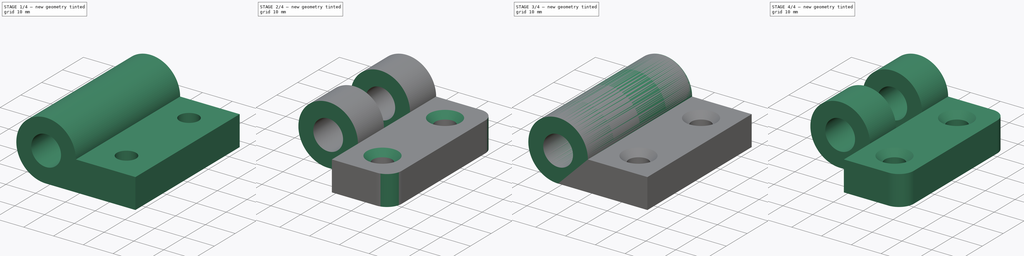
[diagram: build sequence overview — one tinted view per stage of 4, left to right]
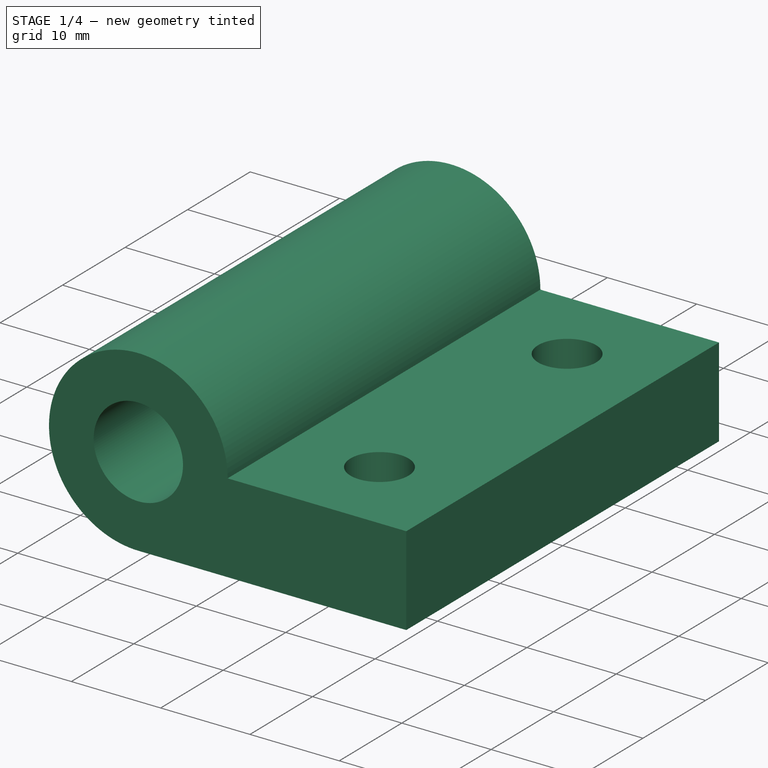
[diagram: stage 1 of 4 — iso view after this stage's code; geometry added in this stage tinted green]
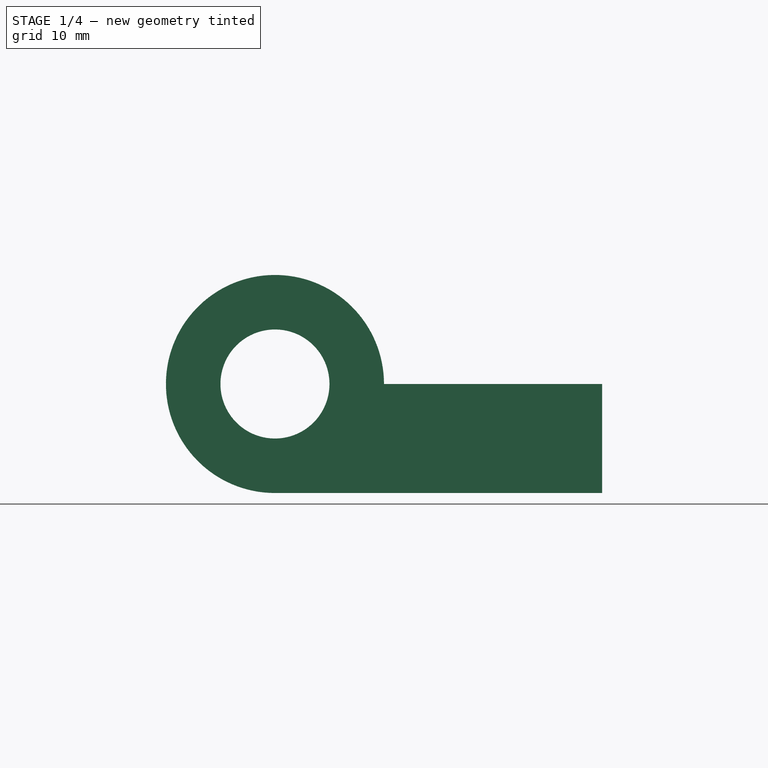
[diagram: stage 1 of 4 — front view after this stage's code; geometry added in this stage tinted green]
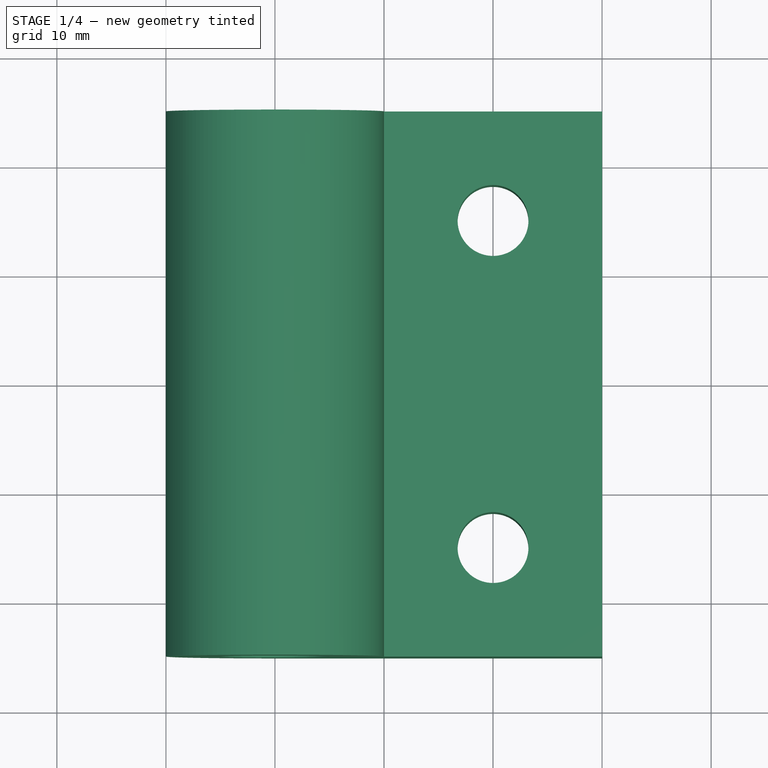
[diagram: stage 1 of 4 — top view after this stage's code; geometry added in this stage tinted green]
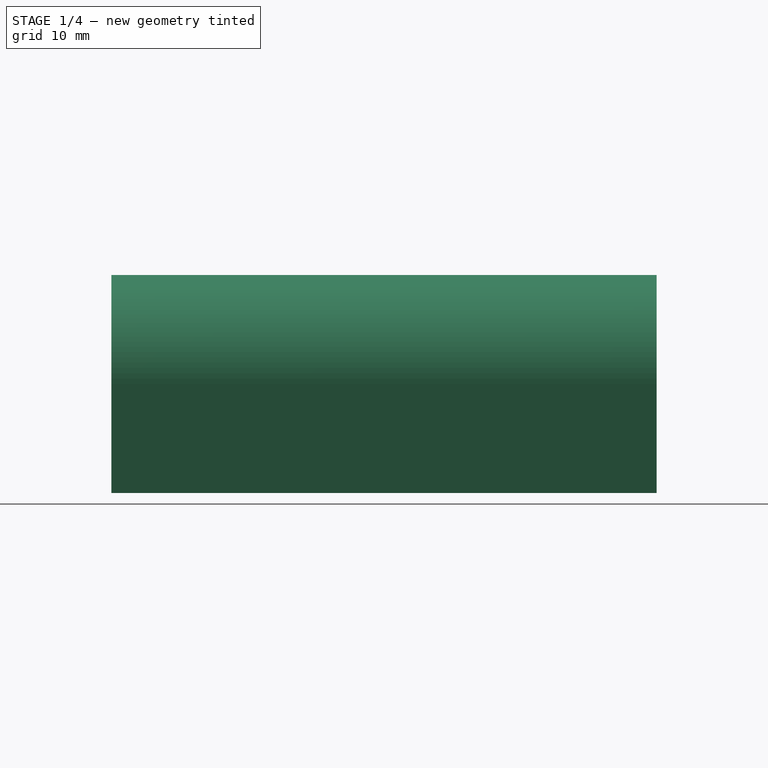
[diagram: stage 1 of 4 — right view after this stage's code; geometry added in this stage tinted green]
FCSTD DOCUMENT  (FreeCAD 1.0R39319 (Git))
Label: Hinge__4040
License: All rights reserved
LicenseURL: http://en.wikipedia.org/wiki/All_rights_reserved
objects: Sketcher::SketchObject×6, PartDesign::Pocket×4, PartDesign::Pad×2, PartDesign::Chamfer×2, PartDesign::Fillet×2, PartDesign::Body×2
note: 44 computed .brp shape members not serialized (recipe doc carries the construction recipe); baked Part::Feature solids carry a one-line shape summary decoded from their .brp

FEATURE [PartDesign::Body] Body
  AllowCompound = false
  Group = -> [Sketch,Pad,Sketch001,Pocket,Chamfer,Fillet,Sketch004,Pocket002]
  Origin = -> Origin
  Tip = -> Pocket002
FEATURE [Sketcher::SketchObject] Sketch005
  ArcFitTolerance = 0
  AttachmentSupport = -> [XZ_Plane001]
  FullyConstrained = true
  MakeInternals = false
  MapMode = 5
  Placement = pos=(0,0,0) rot=(1,0,0;1.5708rad)
  sketch-geometry (5):
    g0: Circle CenterX=0 CenterY=0 CenterZ=0 NormalX=0 NormalY=0 NormalZ=1 AngleXU=0 Radius=5
    g1: ArcOfCircle CenterX=0 CenterY=0 CenterZ=0 NormalX=0 NormalY=0 NormalZ=1 AngleXU=0 Radius=10 StartAngle=0 EndAngle=4.71239
    g2: LineSegment StartX=-1.8e-15 StartY=-10 StartZ=0 EndX=30 EndY=-10 EndZ=0
    g3: LineSegment StartX=30 StartY=-10 StartZ=0 EndX=30 EndY=0 EndZ=0
    g4: LineSegment StartX=30 StartY=0 StartZ=0 EndX=10 EndY=0 EndZ=0
  constraints (14):
    c: Coincident(g0,g-1)
    c: Coincident(g1,g0)
    c: Coincident(g2,g3)
    c: Coincident(g3,g4)
    c: Vertical(g3)
    c: Horizontal(g2)
    c: Horizontal(g4)
    c: DistanceX(g2,g2) = 30
    c: DistanceY(g3,g3) = 10
    c: Diameter(g0) = 10
    c: Diameter(g1) = 20
    c: Coincident(g4,g1)
    c: Coincident(g2,g1)
    c: PointOnObject(g1,g-2)
FEATURE [PartDesign::Pad] Pad001
  Direction = (0,-1,2e-16)
  Length = 50
  Length2 = 10
  Midplane = true
  Placement = pos=(0,0,0) rot=(1,0,0;1.5708rad)
  Profile = -> Sketch005
  ReferenceAxis = -> Sketch005 [N_Axis]
  Refine = true
  Suppressed = false
  Type = 0
FEATURE [Sketcher::SketchObject] Sketch006
  ArcFitTolerance = 1e-06
  AttachmentSupport = -> [Pad001]
  FullyConstrained = true
  MakeInternals = false
  MapMode = 5
  Placement = pos=(0,0,0) rot=(0,0,1;3.14159rad)
  sketch-geometry (2):
    g0: Circle CenterX=-20 CenterY=-15 CenterZ=0 NormalX=0 NormalY=0 NormalZ=1 AngleXU=0 Radius=3.25
    g1: Circle CenterX=-20 CenterY=15 CenterZ=0 NormalX=0 NormalY=0 NormalZ=1 AngleXU=0 Radius=3.25
  constraints (5):
    c: Symmetric(g1,g0,g-1)
    c: Equal(g1,g0)
    c: Diameter(g0) = 6.5
    c: DistanceY(g0,g1) = 30
    c: DistanceX(g0,g-1) = 20
FEATURE [PartDesign::Pocket] Pocket003
  BaseFeature = -> Pad001
  Direction = (0,0,-1)
  Length = 5
  Length2 = 5
  Placement = pos=(0,0,0) rot=(1,0,0;1.5708rad)
  Profile = -> Sketch006
  ReferenceAxis = -> Sketch006 [N_Axis]
  Refine = true
  Suppressed = false
  Type = 2
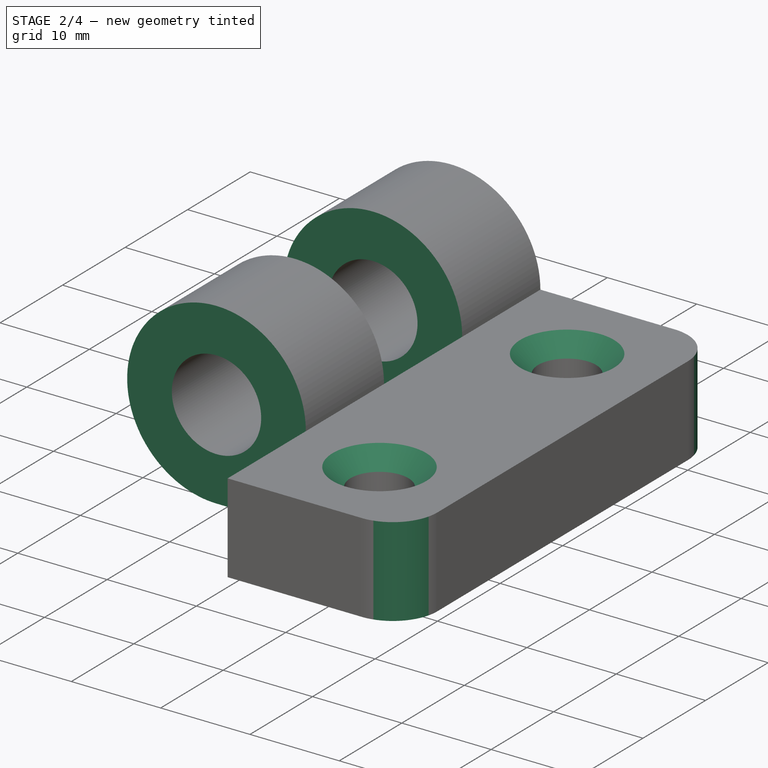
[diagram: stage 2 of 4 — iso view after this stage's code; geometry added in this stage tinted green]
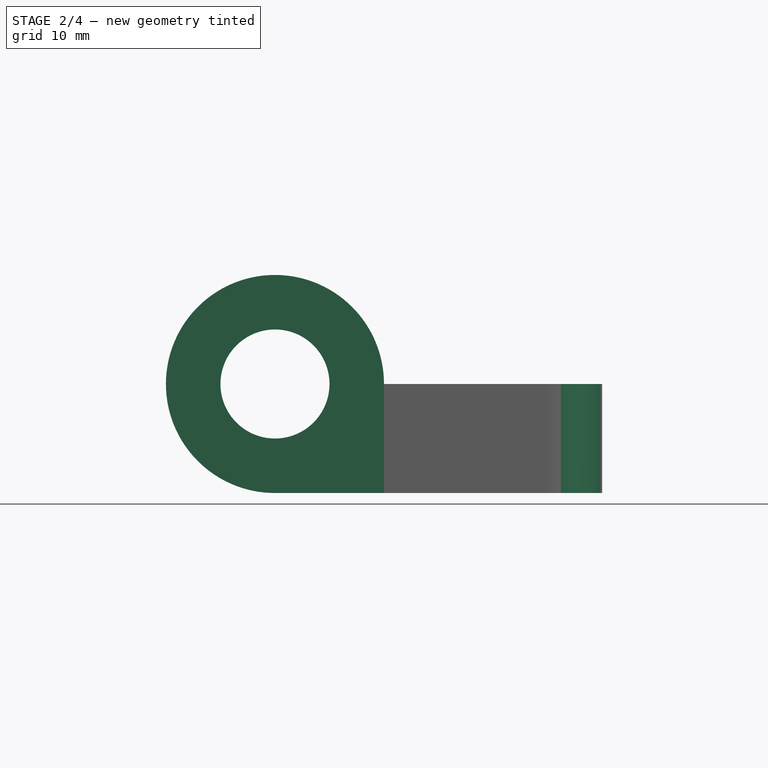
[diagram: stage 2 of 4 — front view after this stage's code; geometry added in this stage tinted green]
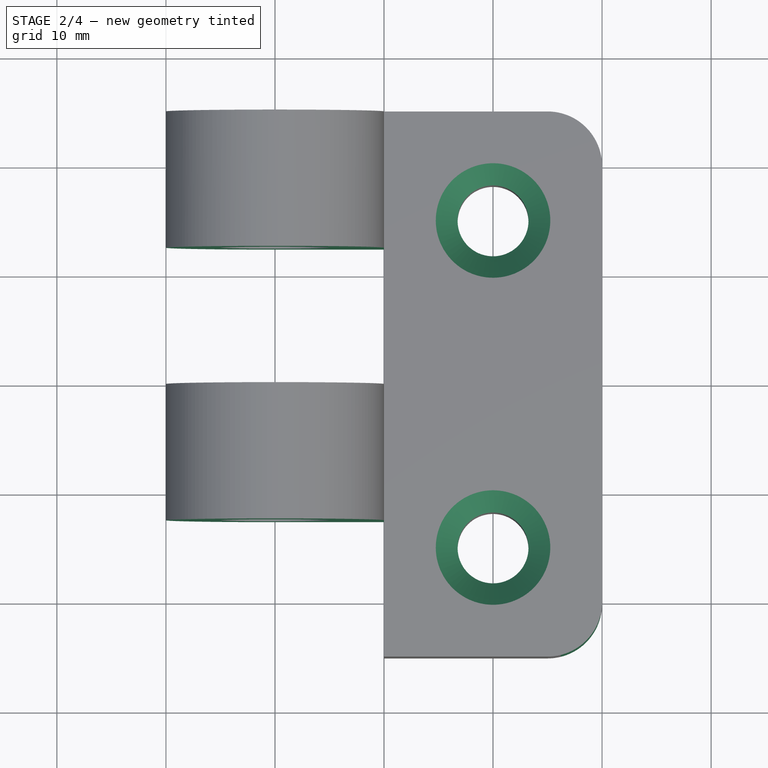
[diagram: stage 2 of 4 — top view after this stage's code; geometry added in this stage tinted green]
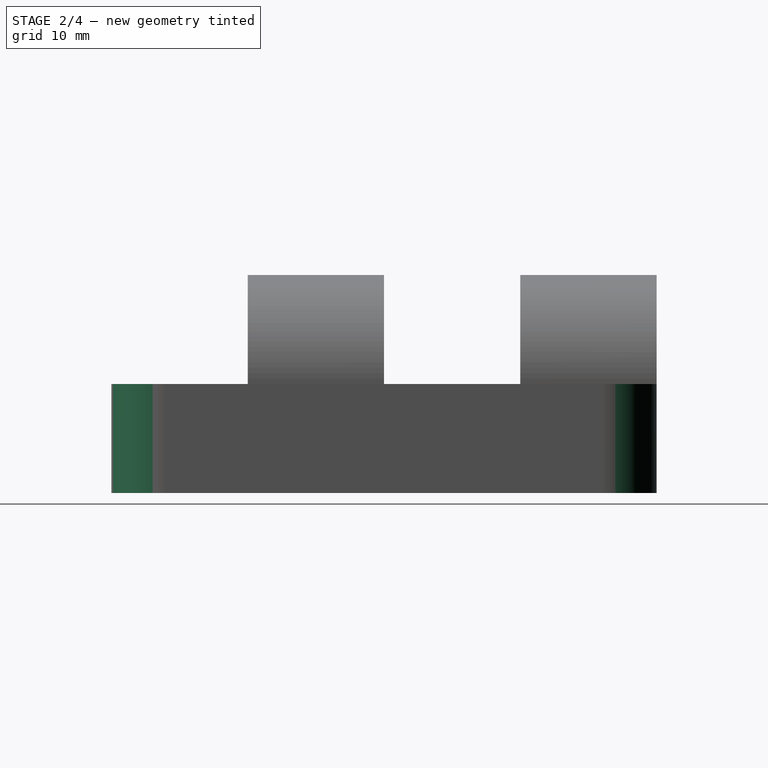
[diagram: stage 2 of 4 — right view after this stage's code; geometry added in this stage tinted green]
FEATURE [PartDesign::Chamfer] Chamfer001
  Angle = 45
  Base = -> Pocket003 [Edge8,Edge9]
  BaseFeature = -> Pocket003
  ChamferType = 0
  FlipDirection = false
  Placement = pos=(0,0,0) rot=(1,0,0;1.5708rad)
  Refine = true
  Size = 2
  Size2 = 1
  SupportTransform = false
  Suppressed = false
  UseAllEdges = false
FEATURE [PartDesign::Fillet] Fillet001
  Base = -> Chamfer001 [Edge10,Edge11]
  BaseFeature = -> Chamfer001
  Placement = pos=(0,0,0) rot=(1,0,0;1.5708rad)
  Radius = 5
  Refine = true
  SupportTransform = false
  Suppressed = false
  UseAllEdges = false
FEATURE [Sketcher::SketchObject] Sketch007
  ArcFitTolerance = 1e-06
  AttachmentSupport = -> [Fillet001]
  ExternalGeometry = -> [Fillet001]
  FullyConstrained = true
  MakeInternals = false
  MapMode = 5
  Placement = pos=(0,-2.2e-15,-10) rot=(1,0,0;3.14159rad)
  sketch-geometry (8):
    g0: LineSegment StartX=-10 StartY=25 StartZ=0 EndX=-10 EndY=12.5 EndZ=0
    g1: LineSegment StartX=-10 StartY=12.5 StartZ=0 EndX=10 EndY=12.5 EndZ=0
    g2: LineSegment StartX=10 StartY=12.5 StartZ=0 EndX=10 EndY=25 EndZ=0
    g3: LineSegment StartX=10 StartY=25 StartZ=0 EndX=-10 EndY=25 EndZ=0
    g4: LineSegment StartX=-10 StartY=0 StartZ=0 EndX=-10 EndY=-12.5 EndZ=0
    g5: LineSegment StartX=-10 StartY=-12.5 StartZ=0 EndX=10 EndY=-12.5 EndZ=0
    g6: LineSegment StartX=10 StartY=-12.5 StartZ=0 EndX=10 EndY=0 EndZ=0
    g7: LineSegment StartX=10 StartY=0 StartZ=0 EndX=-10 EndY=0 EndZ=0
  constraints (22):
    c: Coincident(g0,g1)
    c: Coincident(g1,g2)
    c: Coincident(g2,g3)
    c: Coincident(g3,g0)
    c: Vertical(g0)
    c: Vertical(g2)
    c: Horizontal(g1)
    c: Coincident(g2,g-3)
    c: Coincident(g0,g-3)
    c: Coincident(g4,g5)
    c: Coincident(g5,g6)
    c: Coincident(g6,g7)
    c: Coincident(g7,g4)
    c: Vertical(g4)
    c: Vertical(g6)
    c: Horizontal(g5)
    c: Horizontal(g7)
    c: Vertical(g6,g1)
    c: Equal(g7,g1)
    c: Equal(g4,g0)
    c: PointOnObject(g6,g-1)
    c: DistanceY(g0,g0) = 12.5
FEATURE [PartDesign::Pocket] Pocket004
  BaseFeature = -> Fillet001
  Direction = (0,0,1)
  Length = 5
  Length2 = 5
  Placement = pos=(0,0,0) rot=(1,0,0;1.5708rad)
  Profile = -> Sketch007
  ReferenceAxis = -> Sketch007 [N_Axis]
  Refine = true
  Suppressed = false
  Type = 1
FEATURE [PartDesign::Body] Body001
  AllowCompound = false
  Group = -> [Sketch005,Pad001,Sketch006,Pocket003,Chamfer001,Fillet001,Sketch007,Pocket004]
  Origin = -> Origin001
  Placement = pos=(0,0,0) rot=(-0.382683,0,-0.92388;3.14159rad)
  Tip = -> Pocket004
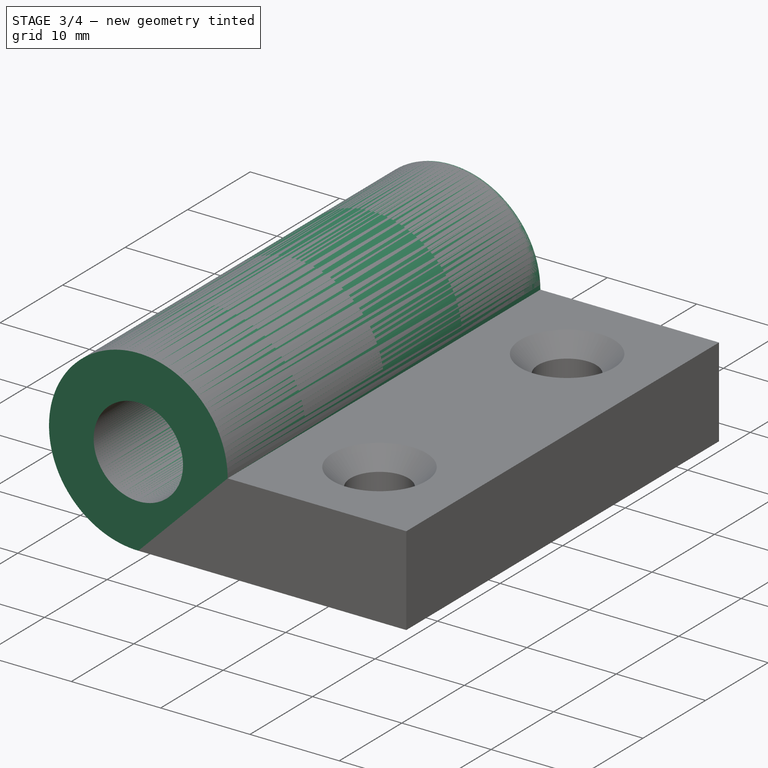
[diagram: stage 3 of 4 — iso view after this stage's code; geometry added in this stage tinted green]
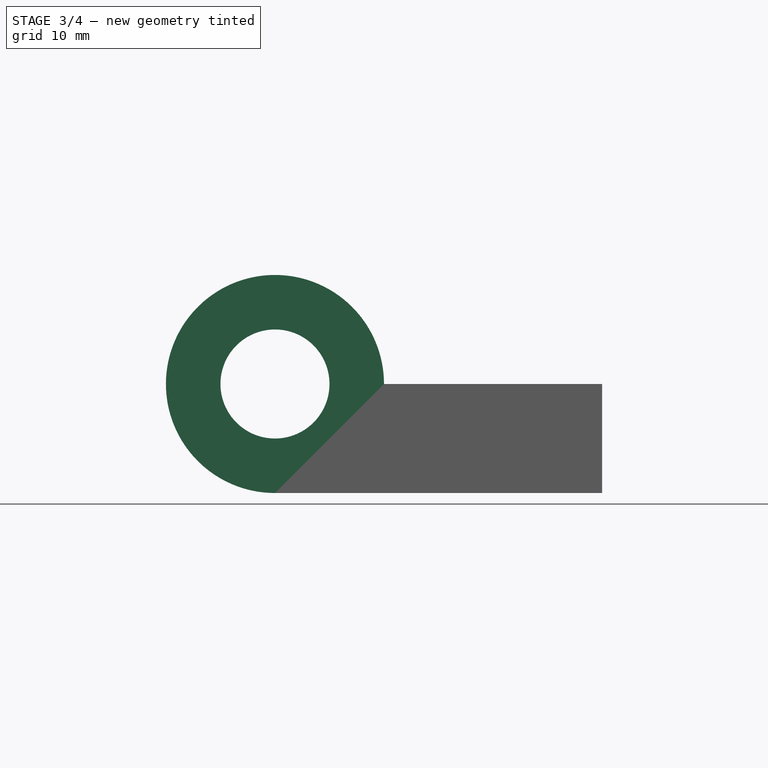
[diagram: stage 3 of 4 — front view after this stage's code; geometry added in this stage tinted green]
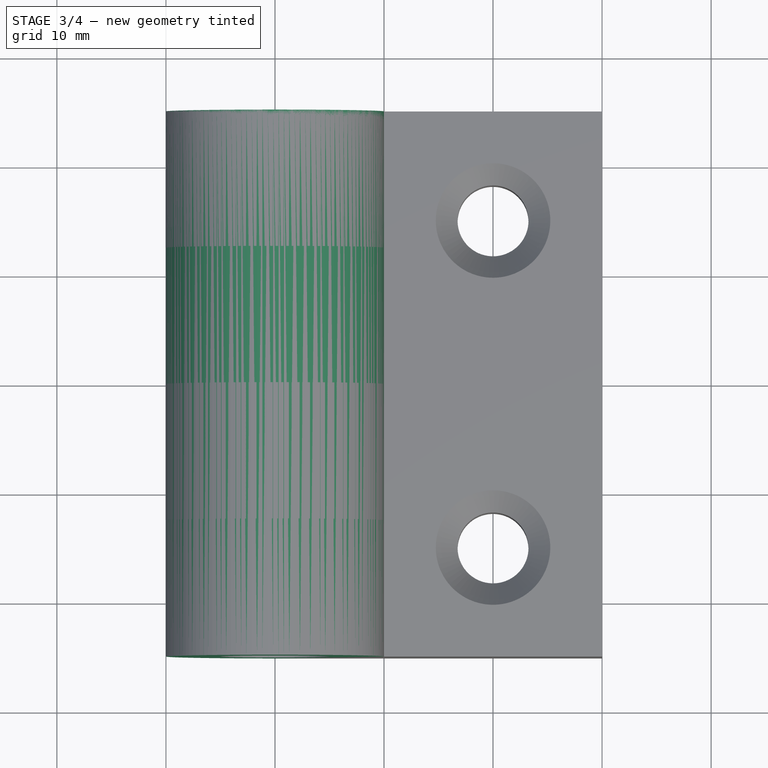
[diagram: stage 3 of 4 — top view after this stage's code; geometry added in this stage tinted green]
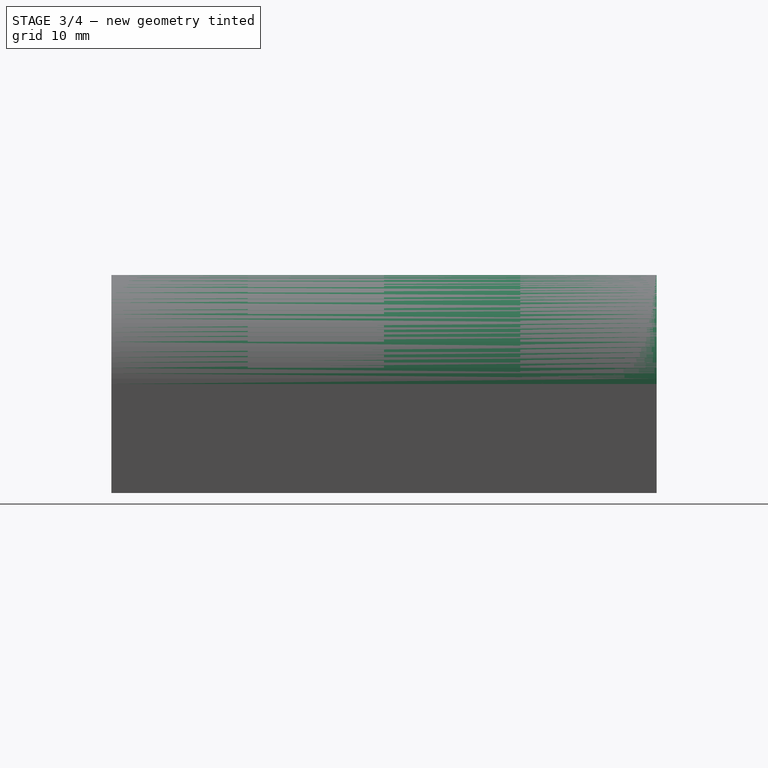
[diagram: stage 3 of 4 — right view after this stage's code; geometry added in this stage tinted green]
FEATURE [Sketcher::SketchObject] Sketch
  ArcFitTolerance = 0
  AttachmentSupport = -> [XZ_Plane]
  FullyConstrained = true
  MakeInternals = false
  MapMode = 5
  Placement = pos=(0,0,0) rot=(1,0,0;1.5708rad)
  sketch-geometry (5):
    g0: Circle CenterX=0 CenterY=0 CenterZ=0 NormalX=0 NormalY=0 NormalZ=1 AngleXU=0 Radius=5
    g1: ArcOfCircle CenterX=0 CenterY=0 CenterZ=0 NormalX=0 NormalY=0 NormalZ=1 AngleXU=0 Radius=10 StartAngle=0 EndAngle=4.71239
    g2: LineSegment StartX=-1.8e-15 StartY=-10 StartZ=0 EndX=30 EndY=-10 EndZ=0
    g3: LineSegment StartX=30 StartY=-10 StartZ=0 EndX=30 EndY=0 EndZ=0
    g4: LineSegment StartX=30 StartY=0 StartZ=0 EndX=10 EndY=0 EndZ=0
  constraints (14):
    c: Coincident(g0,g-1)
    c: Coincident(g1,g0)
    c: Coincident(g2,g3)
    c: Coincident(g3,g4)
    c: Vertical(g3)
    c: Horizontal(g2)
    c: Horizontal(g4)
    c: DistanceX(g2,g2) = 30
    c: DistanceY(g3,g3) = 10
    c: Diameter(g0) = 10
    c: Diameter(g1) = 20
    c: Coincident(g4,g1)
    c: Coincident(g2,g1)
    c: PointOnObject(g1,g-2)
FEATURE [PartDesign::Pad] Pad
  Direction = (0,-1,2e-16)
  Length = 50
  Length2 = 10
  Midplane = true
  Placement = pos=(0,0,0) rot=(1,0,0;1.5708rad)
  Profile = -> Sketch
  ReferenceAxis = -> Sketch [N_Axis]
  Refine = true
  Suppressed = false
  Type = 0
FEATURE [Sketcher::SketchObject] Sketch001
  ArcFitTolerance = 1e-06
  AttachmentSupport = -> [Pad]
  FullyConstrained = true
  MakeInternals = false
  MapMode = 5
  Placement = pos=(0,0,0) rot=(0,0,1;3.14159rad)
  sketch-geometry (2):
    g0: Circle CenterX=-20 CenterY=-15 CenterZ=0 NormalX=0 NormalY=0 NormalZ=1 AngleXU=0 Radius=3.25
    g1: Circle CenterX=-20 CenterY=15 CenterZ=0 NormalX=0 NormalY=0 NormalZ=1 AngleXU=0 Radius=3.25
  constraints (5):
    c: Symmetric(g1,g0,g-1)
    c: Equal(g1,g0)
    c: Diameter(g0) = 6.5
    c: DistanceY(g0,g1) = 30
    c: DistanceX(g0,g-1) = 20
FEATURE [PartDesign::Pocket] Pocket
  BaseFeature = -> Pad
  Direction = (0,0,-1)
  Length = 5
  Length2 = 5
  Placement = pos=(0,0,0) rot=(1,0,0;1.5708rad)
  Profile = -> Sketch001
  ReferenceAxis = -> Sketch001 [N_Axis]
  Refine = true
  Suppressed = false
  Type = 2
FEATURE [PartDesign::Chamfer] Chamfer
  Angle = 45
  Base = -> Pocket [Edge8,Edge9]
  BaseFeature = -> Pocket
  ChamferType = 0
  FlipDirection = false
  Placement = pos=(0,0,0) rot=(1,0,0;1.5708rad)
  Refine = true
  Size = 2
  Size2 = 1
  SupportTransform = false
  Suppressed = false
  UseAllEdges = false
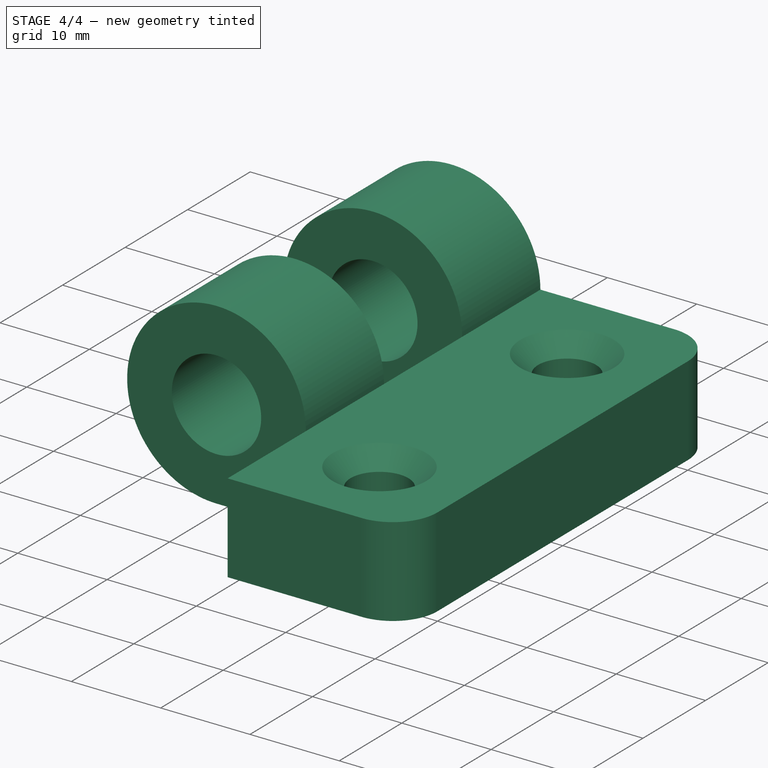
[diagram: stage 4 of 4 — iso view after this stage's code; geometry added in this stage tinted green]
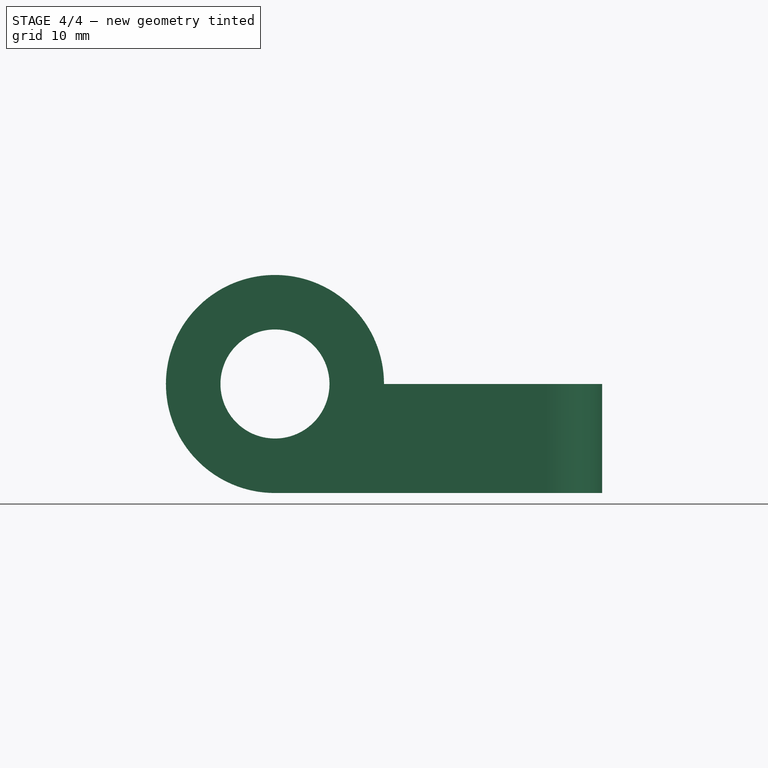
[diagram: stage 4 of 4 — front view after this stage's code; geometry added in this stage tinted green]
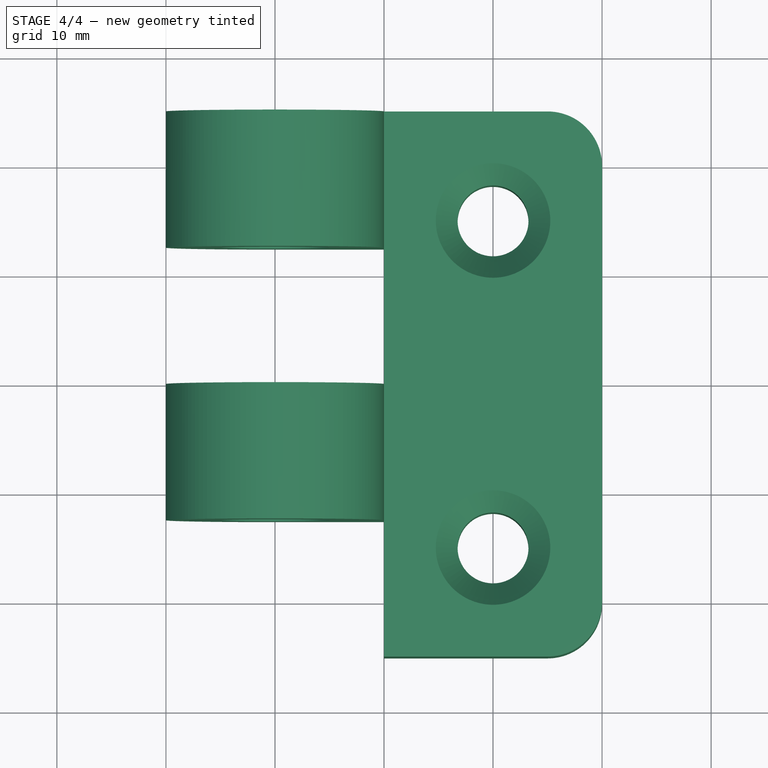
[diagram: stage 4 of 4 — top view after this stage's code; geometry added in this stage tinted green]
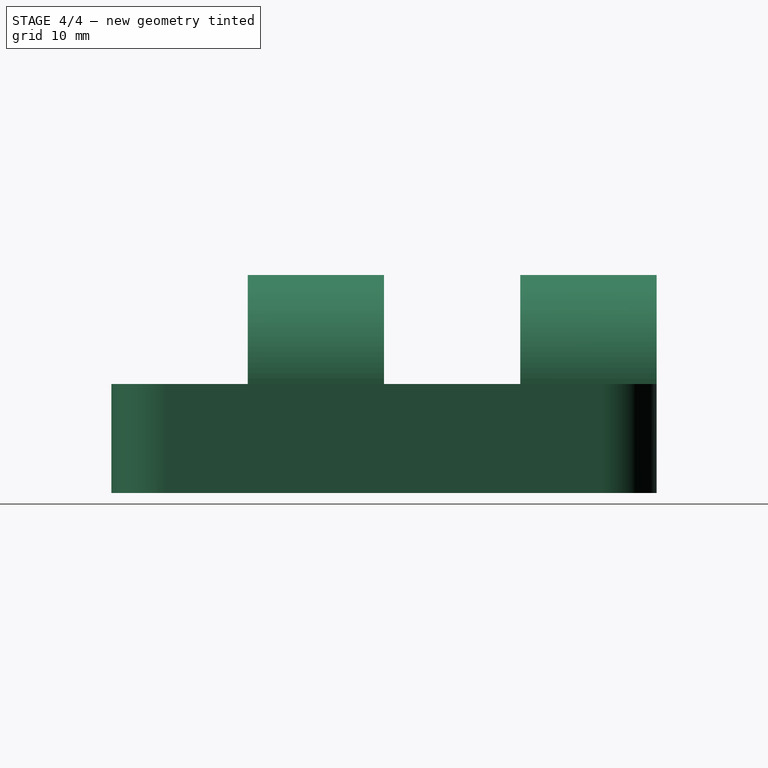
[diagram: stage 4 of 4 — right view after this stage's code; geometry added in this stage tinted green]
FEATURE [PartDesign::Fillet] Fillet
  Base = -> Chamfer [Edge10,Edge11]
  BaseFeature = -> Chamfer
  Placement = pos=(0,0,0) rot=(1,0,0;1.5708rad)
  Radius = 5
  Refine = true
  SupportTransform = false
  Suppressed = false
  UseAllEdges = false
FEATURE [Sketcher::SketchObject] Sketch004
  ArcFitTolerance = 1e-06
  AttachmentSupport = -> [Fillet]
  ExternalGeometry = -> [Fillet]
  FullyConstrained = true
  MakeInternals = false
  MapMode = 5
  Placement = pos=(0,-2.2e-15,-10) rot=(1,0,0;3.14159rad)
  sketch-geometry (8):
    g0: LineSegment StartX=-10 StartY=25 StartZ=0 EndX=-10 EndY=12.5 EndZ=0
    g1: LineSegment StartX=-10 StartY=12.5 StartZ=0 EndX=10 EndY=12.5 EndZ=0
    g2: LineSegment StartX=10 StartY=12.5 StartZ=0 EndX=10 EndY=25 EndZ=0
    g3: LineSegment StartX=10 StartY=25 StartZ=0 EndX=-10 EndY=25 EndZ=0
    g4: LineSegment StartX=-10 StartY=0 StartZ=0 EndX=-10 EndY=-12.5 EndZ=0
    g5: LineSegment StartX=-10 StartY=-12.5 StartZ=0 EndX=10 EndY=-12.5 EndZ=0
    g6: LineSegment StartX=10 StartY=-12.5 StartZ=0 EndX=10 EndY=0 EndZ=0
    g7: LineSegment StartX=10 StartY=0 StartZ=0 EndX=-10 EndY=0 EndZ=0
  constraints (22):
    c: Coincident(g0,g1)
    c: Coincident(g1,g2)
    c: Coincident(g2,g3)
    c: Coincident(g3,g0)
    c: Vertical(g0)
    c: Vertical(g2)
    c: Horizontal(g1)
    c: Coincident(g2,g-3)
    c: Coincident(g0,g-3)
    c: Coincident(g4,g5)
    c: Coincident(g5,g6)
    c: Coincident(g6,g7)
    c: Coincident(g7,g4)
    c: Vertical(g4)
    c: Vertical(g6)
    c: Horizontal(g5)
    c: Horizontal(g7)
    c: Vertical(g6,g1)
    c: Equal(g7,g1)
    c: Equal(g4,g0)
    c: PointOnObject(g6,g-1)
    c: DistanceY(g0,g0) = 12.5
FEATURE [PartDesign::Pocket] Pocket002
  BaseFeature = -> Fillet
  Direction = (0,0,1)
  Length = 5
  Length2 = 5
  Placement = pos=(0,0,0) rot=(1,0,0;1.5708rad)
  Profile = -> Sketch004
  ReferenceAxis = -> Sketch004 [N_Axis]
  Refine = true
  Suppressed = false
  Type = 1
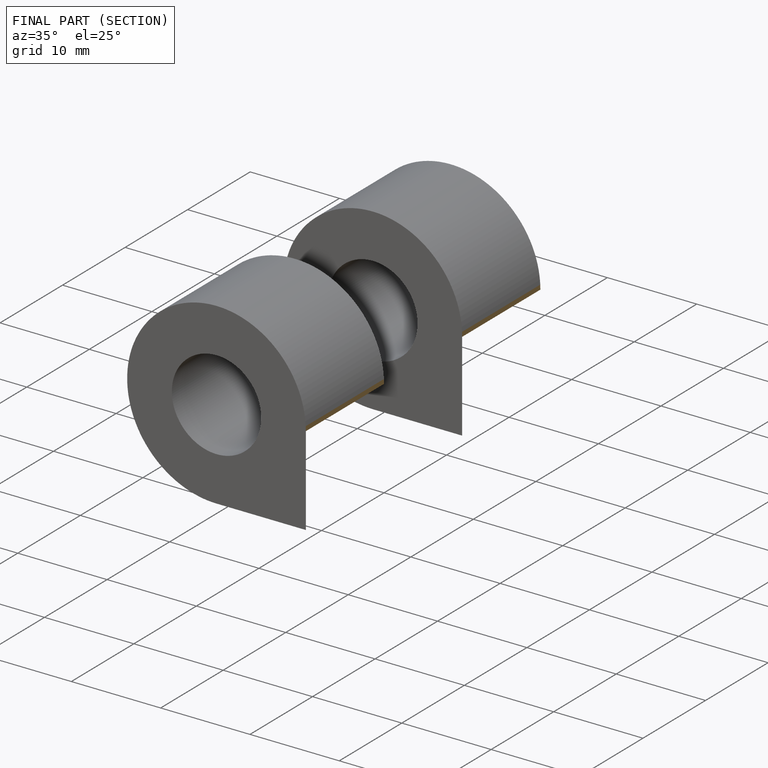
[diagram: finished part — half-section view (interior)]
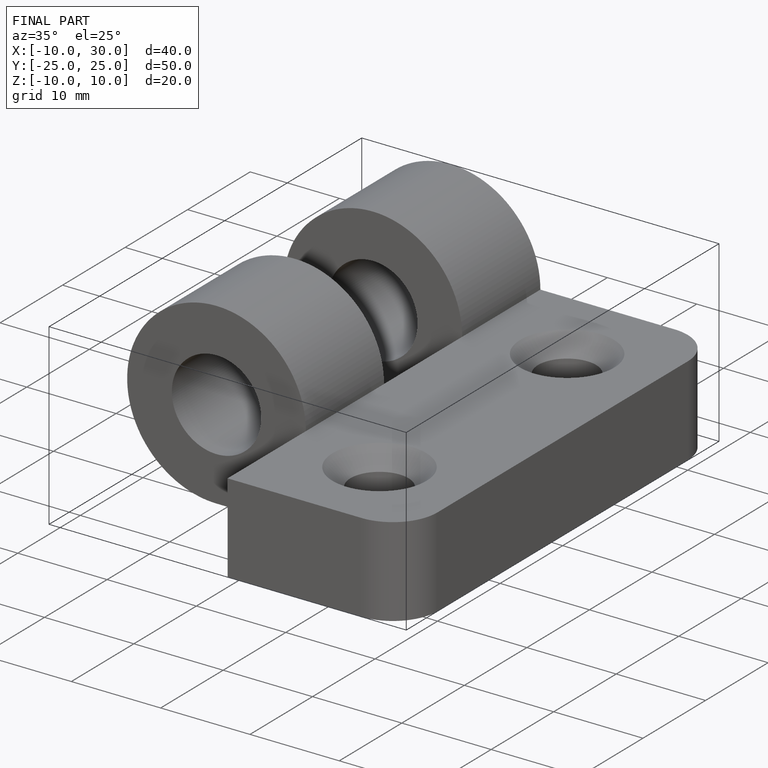
[diagram: finished part — iso view with bounding-box wireframe]
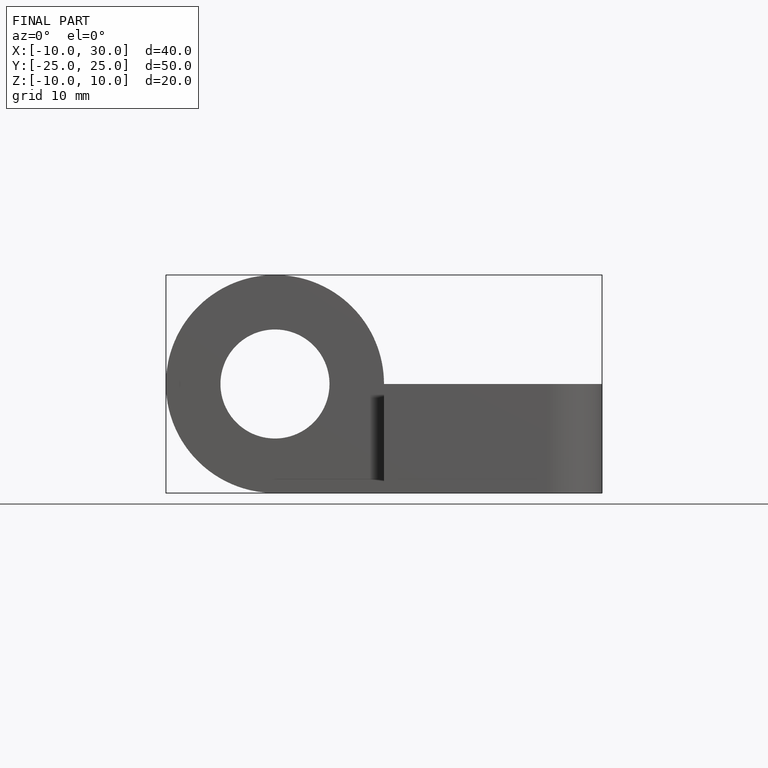
[diagram: finished part — front view with bounding-box wireframe]
